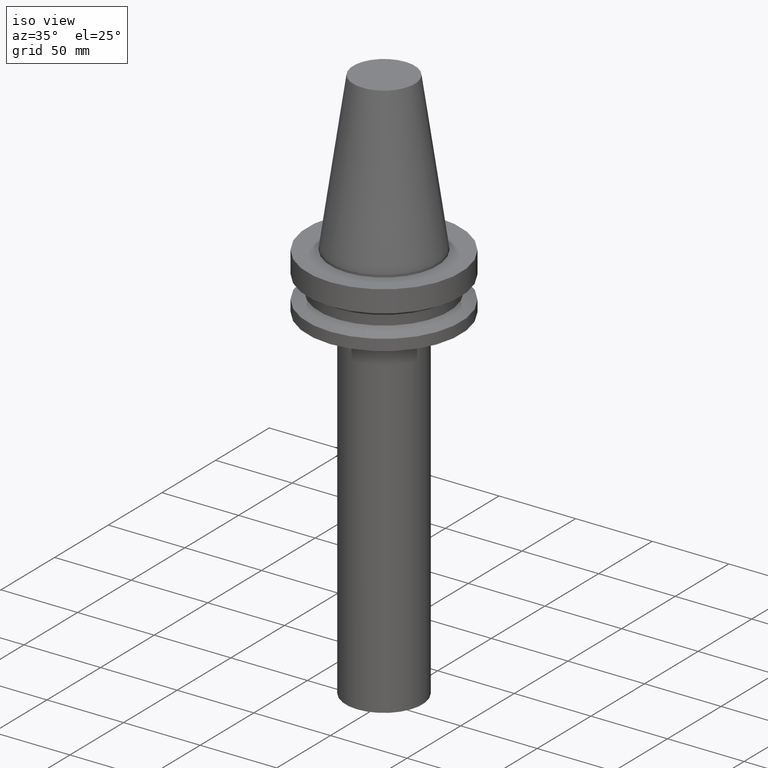
[diagram: clean part render]
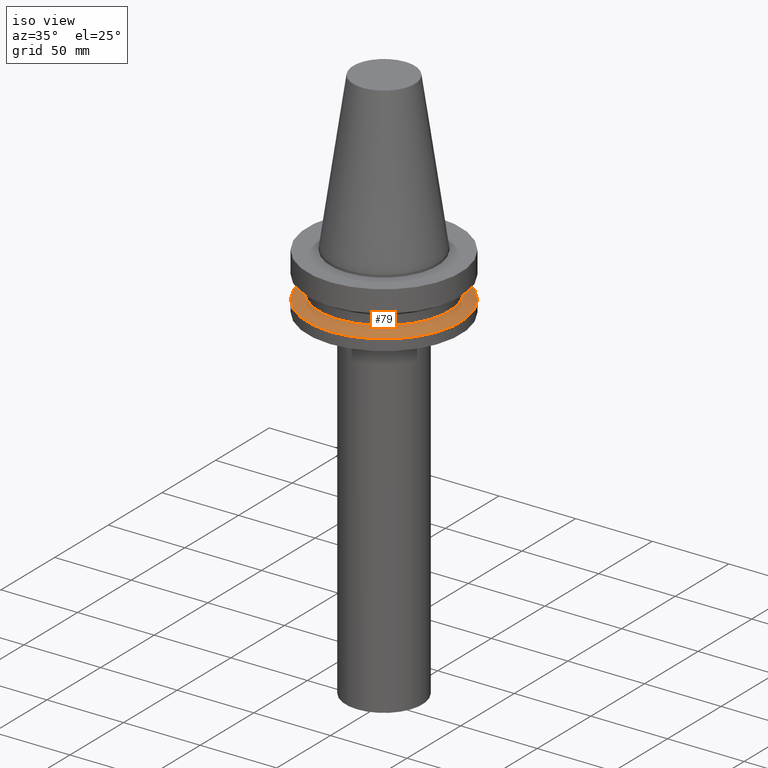
[diagram: same view with one face highlighted and labeled with its STEP entity id]
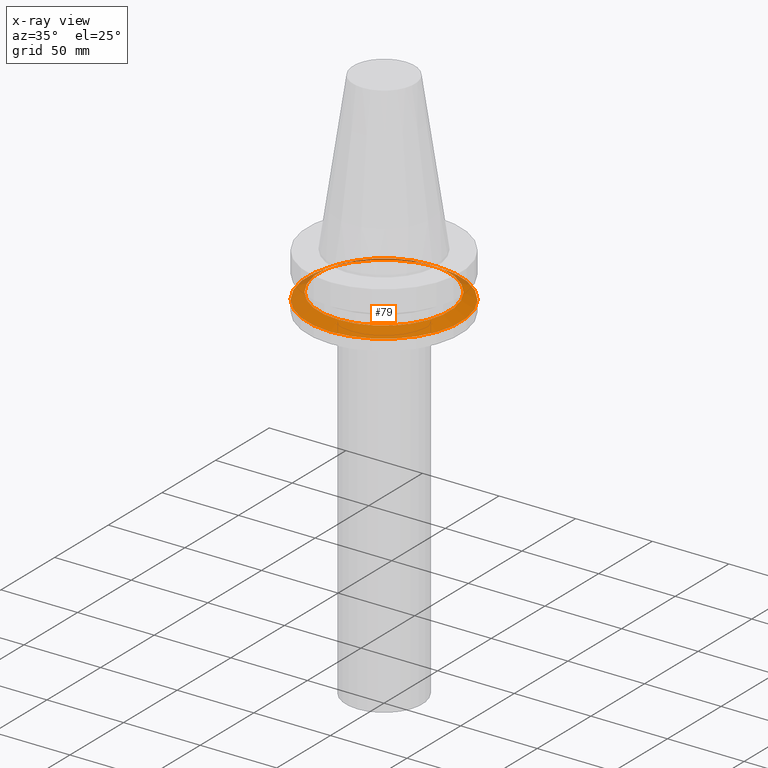
[diagram: x-ray of the same camera — body ghosted, the highlighted face saturated]
A machine part, iso view. The second image highlights one B-rep face of the part: STEP entity #79.
The next image is the same camera in x-ray: the body ghosted, the highlighted face saturated — about 8% of this face is hidden behind the body in this view.
In plain terms, the highlighted conical surface has half-angle 60 deg.
Its self-contained STEP definition (entity closure, byte-faithful):
#79=ADVANCED_FACE('',(#101,#102),#103,.T.);
#101=FACE_BOUND('',#138,.T.);
#102=FACE_BOUND('',#139,.T.);
#103=CONICAL_SURFACE('',#140,46.25,1.04719755108882);
#138=EDGE_LOOP('',(#183));
#139=EDGE_LOOP('',(#184));
#140=AXIS2_PLACEMENT_3D('',#185,#186,#187);
#183=ORIENTED_EDGE('',*,*,#231,.F.);
#184=ORIENTED_EDGE('',*,*,#230,.T.);
#185=CARTESIAN_POINT('',(1.74726093181758E-015,3.49452186363515E-015,-28.53493649));
#186=DIRECTION('',(6.12323399573676E-017,1.22464679914735E-016,-1.0));
#187=DIRECTION('',(-1.23259516440783E-032,1.0,1.22464679914735E-016));
#230=EDGE_CURVE('',#246,#246,#247,.T.);
#231=EDGE_CURVE('',#248,#248,#249,.T.);
#246=VERTEX_POINT('',#270);
#247=CIRCLE('',#271,42.5);
#248=VERTEX_POINT('',#272);
#249=CIRCLE('',#273,50.0);
#270=CARTESIAN_POINT('',(1.61468902694396E-015,42.5,-26.36987298));
#271=AXIS2_PLACEMENT_3D('',#298,#299,#300);
#272=CARTESIAN_POINT('',(1.87983283669119E-015,50.0,-30.7));
#273=AXIS2_PLACEMENT_3D('',#301,#302,#303);
#298=CARTESIAN_POINT('',(1.61468902694396E-015,3.22937805388793E-015,-26.36987298));
#299=DIRECTION('',(6.12323399573677E-017,1.22464679914735E-016,-1.0));
#300=DIRECTION('',(-1.23259516440783E-032,1.0,1.22464679914735E-016));
#301=CARTESIAN_POINT('',(1.87983283669119E-015,3.75966567338237E-015,-30.7));
#302=DIRECTION('',(6.12323399573677E-017,1.22464679914735E-016,-1.0));
#303=DIRECTION('',(-1.23259516440783E-032,1.0,1.22464679914735E-016));